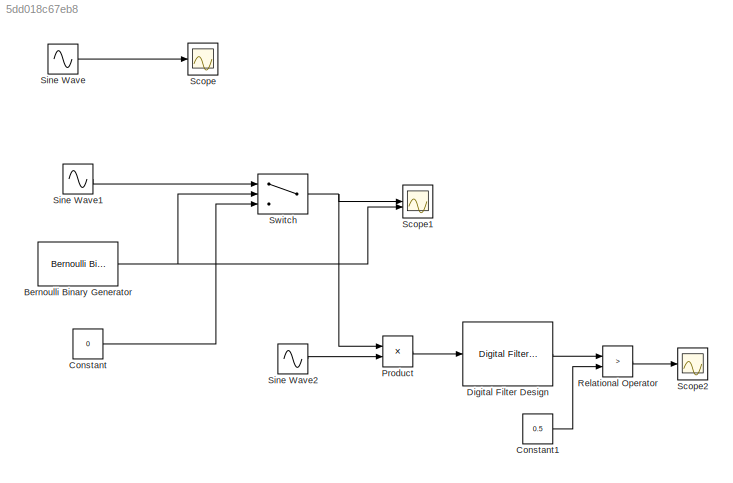
MODEL slx_5dd018c67eb8
KIND model
CONFIG AbsTol = auto
CONFIG EnableMultiTasking = off
CONFIG FixedStep = auto
CONFIG MaxStep = auto
CONFIG MinStep = auto
CONFIG RelTol = 1e-3
CONFIG SampleTimeConstraint = Unconstrained
CONFIG SolverName = VariableStepAuto
CONFIG StartTime = 0.0
CONFIG StopTime = 10.0
BLOCK [Reference] Bernoulli Binary Generator  REF=commrandsrc3/Bernoulli Binary
Generator
  SourceBlock = commrandsrc3/Bernoulli Binary\nGenerator
  SourceType = Bernoulli Binary Generator
BLOCK [Constant] Constant
  Value = 0
BLOCK [Constant] Constant1
  Value = 0.5
BLOCK [Reference] Digital Filter Design  REF=dspfdesign/Digital
Filter Design
  SourceBlock = dspfdesign/Digital\nFilter Design
  SourceType = Digital Filter Design
  UserDataPersistent = on
BLOCK [Product] Product
BLOCK [RelationalOperator] Relational Operator
  InputSameDT = off
  Operator = >
  OutDataTypeStr = boolean
  RndMeth = Simplest
BLOCK [Scope] Scope
  ActiveDisplayYMaximum = 1.2490408795261734
  ActiveDisplayYMinimum = -1.2456318853205086
  Floating = off
  GraphicalSettings = {"Style":{"BackgroundColor":[0.12941176470588237,0.12941176470588237,0.12941176470588237],"AxesColor":[0.07058823529411765,0.07058823529411765,0.07058823529411765],"LabelsColor":[0.8509803921568627,0.8509803921568627,0.8509803921568627],"PreserveColors":false,"Visible":[true],"LineStyle":["-"],"LineWidth":[1.5],"BarWidth":[0.9],"LineColor":["auto"],"LineFaceAlpha":[1],"LineEdgeAlpha":[1],"Marker":...<+1897ch>
  MultipleDisplayCache = [{"MaxYLimMag":1.2490408795261734,"MaxYLimReal":1.2490408795261734,"MinYLimMag":0,"MinYLimReal":-1.2456318853205086,"PlotAsMagnitudePhase":false,"ShowGrid":true,"ShowLegend":false,"Title":"%<SignalLabel>","YLabel":""}]
  NumInputPorts = 1
  ScopeFrameLocation = window
  WasSavedAsWebScope = on
  WindowPosition = [633.000000,151.000000,424.000000,320.000000,]
BLOCK [Scope] Scope1
  ActiveDisplayYMaximum = 1.2475334105405003
  ActiveDisplayYMinimum = -1.2475334105405018
  DataLoggingVariableName = ScopeData1
  Floating = off
  GraphicalSettings = {"Style":{"BackgroundColor":[0.12941176470588237,0.12941176470588237,0.12941176470588237],"AxesColor":[0.07058823529411765,0.07058823529411765,0.07058823529411765],"LabelsColor":[0.8509803921568627,0.8509803921568627,0.8509803921568627],"PreserveColors":false,"Visible":[true,true],"LineStyle":["-","-"],"LineWidth":[1.5,1.5],"BarWidth":[0.9,0.9],"LineColor":["auto","auto"],"LineFaceAlpha":[1,1],"Li...<+2312ch>
  LayoutDimensionsString = [2,1]
  MultipleDisplayCache = [{"MaxYLimMag":1.2475334105405018,"MaxYLimReal":1.2475334105405003,"MinYLimMag":0,"MinYLimReal":-1.2475334105405018,"PlotAsMagnitudePhase":false,"ShowGrid":true,"ShowLegend":false,"Title":"%<SignalLabel>","YLabel":""},{"MaxYLimMag":1.125,"MaxYLimReal":1.125,"MinYLimMag":0,"MinYLimReal":-0.12499999999999997,"PlotAsMagnitudePhase":false,"ShowGrid":true,"ShowLegend":false,"Title":"%<SignalLabel>","YL...<+10ch>
  NumInputPorts = 2
  ScopeFrameLocation = window
  WasSavedAsWebScope = on
  WindowPosition = [306.000000,203.000000,560.000000,420.000000,]
BLOCK [Scope] Scope2
  ActiveDisplayYMaximum = 1.125
  ActiveDisplayYMinimum = -0.12499999999999997
  DataLoggingVariableName = ScopeData2
  Floating = off
  GraphicalSettings = {"Style":{"BackgroundColor":[0.12941176470588237,0.12941176470588237,0.12941176470588237],"AxesColor":[0.07058823529411765,0.07058823529411765,0.07058823529411765],"LabelsColor":[0.8509803921568627,0.8509803921568627,0.8509803921568627],"PreserveColors":false,"Visible":[true],"LineStyle":["-"],"LineWidth":[1.5],"BarWidth":[0.9],"LineColor":["auto"],"LineFaceAlpha":[1],"LineEdgeAlpha":[1],"Marker":...<+1972ch>
  MultipleDisplayCache = [{"MaxYLimMag":1.125,"MaxYLimReal":1.125,"MinYLimMag":0,"MinYLimReal":-0.12499999999999997,"PlotAsMagnitudePhase":false,"ShowGrid":true,"ShowLegend":false,"Title":"%<SignalLabel>","YLabel":""}]
  NumInputPorts = 1
  ScopeFrameLocation = window
  WasSavedAsWebScope = on
  WindowPosition = [906.000000,190.000000,560.000000,420.000000,]
BLOCK [Sin] Sine Wave
  SampleTime = 0
BLOCK [Sin] Sine Wave1
  Frequency = 2*pi*100
  SampleTime = 0.0001
BLOCK [Sin] Sine Wave2
  Frequency = 2*pi*100
  SampleTime = 0.0001
BLOCK [Switch] Switch
  Criteria = u2 > Threshold
  InputSameDT = off
  SaturateOnIntegerOverflow = off
NET Bernoulli Binary Generator:1 -> Scope1:2, Switch:2
LINE Constant1:1 -> Relational Operator:2
LINE Constant:1 -> Switch:3
LINE Digital Filter Design:1 -> Relational Operator:1
LINE Product:1 -> Digital Filter Design:1
LINE Relational Operator:1 -> Scope2:1
LINE Sine Wave1:1 -> Switch:1
LINE Sine Wave2:1 -> Product:2
LINE Sine Wave:1 -> Scope:1
NET Switch:1 -> Product:1, Scope1:1
note: NET lines group one-source signal fan-out (src -> all destinations, sorted); 1:1 wires keep LINE
